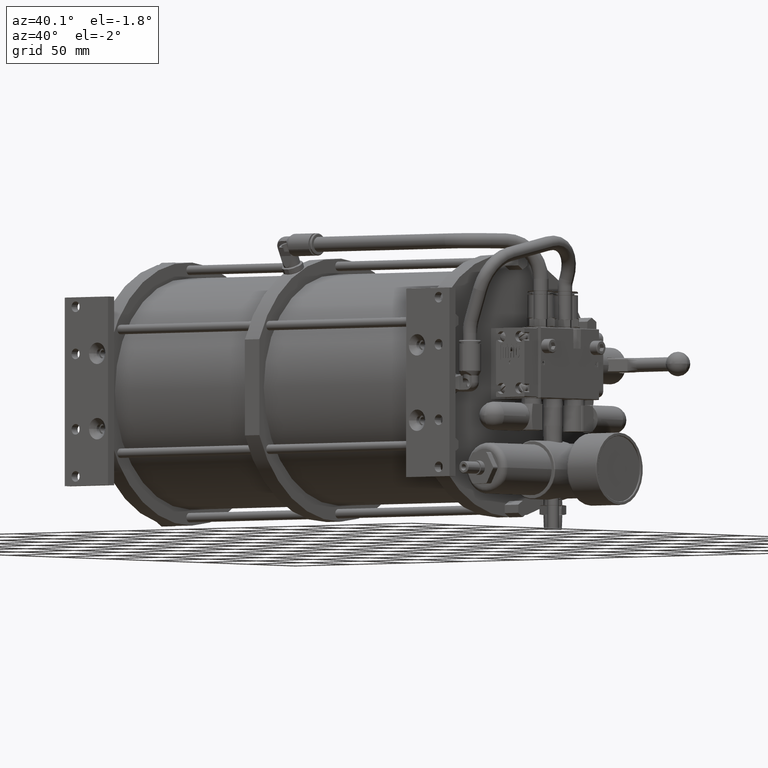
[diagram: clean part render]
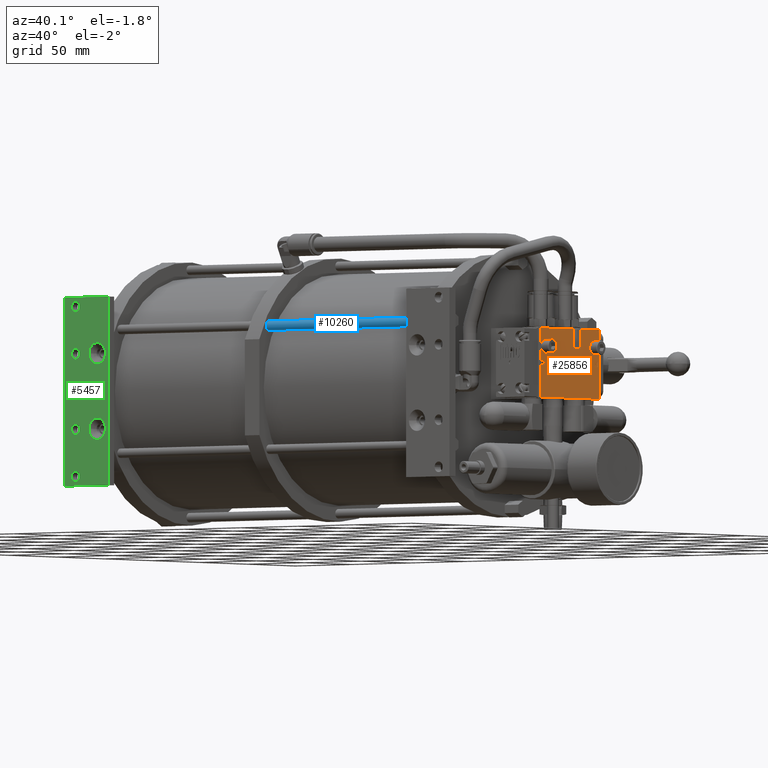
[diagram: same view with three faces highlighted in distinct colors, each labeled with its STEP entity id]
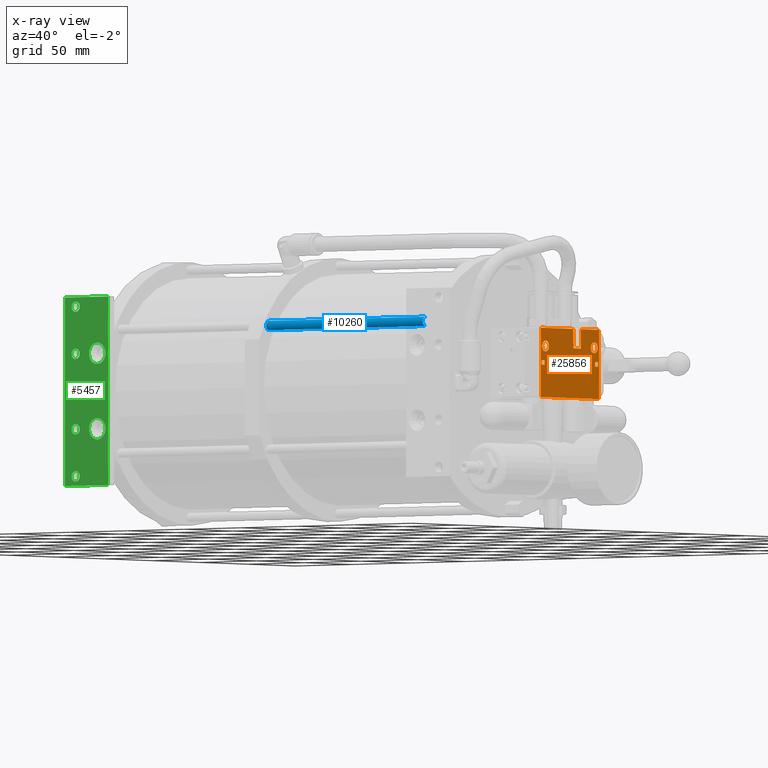
[diagram: x-ray of the same camera — body ghosted, the three highlighted faces saturated]
A machine part, auxiliary view with three faces highlighted in distinct colors.
The next image is the same camera in x-ray (body ghosted, the three faces saturated) — at least one of them is partly hidden behind the body in this view.
Their STEP definitions:

[orange] entity #25856 — the highlighted planar face has unit normal (1, 0, 0).
#17614=DIRECTION('',(0.E0,1.097127964287E-14,1.E0));
#17615=VECTOR('',#17614,4.663000000001E1);
#17616=CARTESIAN_POINT('',(1.932204E2,1.32E2,-7.253000000001E1));
#17617=LINE('',#17616,#17615);
#17650=DIRECTION('',(-1.452586324365E-6,-1.742051257834E-2,9.998482513559E-1));
#17651=VECTOR('',#17650,1.310635197275E1);
#17652=CARTESIAN_POINT('',(1.932204E2,1.0535E2,-3.9E1));
#17653=LINE('',#17652,#17651);
#17654=DIRECTION('',(1.452586322264E-6,-1.742050991343E-2,-9.998482514023E-1));
#17655=VECTOR('',#17654,1.310635197214E1);
#17656=CARTESIAN_POINT('',(1.932203809619E2,1.130783193345E2,
-2.589563689839E1));
#17657=LINE('',#17656,#17655);
#17658=CARTESIAN_POINT('',(1.932204E2,1.30625E2,-3.81E1));
#17659=CARTESIAN_POINT('',(1.932204E2,1.306206400372E2,-3.766192602456E1));
#17660=CARTESIAN_POINT('',(1.932204E2,1.304783948159E2,-3.684266357365E1));
#17661=CARTESIAN_POINT('',(1.932204E2,1.298334496525E2,-3.572016118525E1));
#17662=CARTESIAN_POINT('',(1.932204E2,1.288499314924E2,-3.489684572054E1));
#17663=CARTESIAN_POINT('',(1.932204E2,1.276423860299E2,-3.445672768160E1));
#17664=CARTESIAN_POINT('',(1.932204E2,1.263576431618E2,-3.445672269556E1));
#17665=CARTESIAN_POINT('',(1.932204E2,1.251500941562E2,-3.489683041824E1));
#17666=CARTESIAN_POINT('',(1.932204E2,1.241665694250E2,-3.572014027405E1));
#17667=CARTESIAN_POINT('',(1.932204E2,1.235216152375E2,-3.684262901800E1));
#17668=CARTESIAN_POINT('',(1.932204E2,1.233793634644E2,-3.766191156053E1));
#17669=CARTESIAN_POINT('',(1.932204E2,1.23375E2,-3.81E1));
#17671=CARTESIAN_POINT('',(1.932204E2,1.23375E2,-3.81E1));
#17672=CARTESIAN_POINT('',(1.932204E2,1.233793599629E2,-3.853807397544E1));
#17673=CARTESIAN_POINT('',(1.932204E2,1.235216051841E2,-3.935733642636E1));
#17674=CARTESIAN_POINT('',(1.932204E2,1.241665503474E2,-4.047983881469E1));
#17675=CARTESIAN_POINT('',(1.932204E2,1.251500685075E2,-4.130315427942E1));
#17676=CARTESIAN_POINT('',(1.932204E2,1.263576139700E2,-4.174327231839E1));
#17677=CARTESIAN_POINT('',(1.932204E2,1.276423568381E2,-4.174327730449E1));
#17678=CARTESIAN_POINT('',(1.932204E2,1.288499058437E2,-4.130316958185E1));
#17679=CARTESIAN_POINT('',(1.932204E2,1.298334305750E2,-4.047985972595E1));
#17680=CARTESIAN_POINT('',(1.932204E2,1.304783847624E2,-3.935737098214E1));
#17681=CARTESIAN_POINT('',(1.932204E2,1.306206365356E2,-3.853808843953E1));
#17682=CARTESIAN_POINT('',(1.932204E2,1.30625E2,-3.81E1));
#17684=CARTESIAN_POINT('',(1.932204E2,7.9825E1,-3.81E1));
#17685=CARTESIAN_POINT('',(1.932204E2,7.982064003709E1,-3.766192602441E1));
#17686=CARTESIAN_POINT('',(1.932204E2,7.967839481578E1,-3.684266357328E1));
#17687=CARTESIAN_POINT('',(1.932204E2,7.903344965245E1,-3.572016118519E1));
#17688=CARTESIAN_POINT('',(1.932204E2,7.804993149236E1,-3.489684572049E1));
#17689=CARTESIAN_POINT('',(1.932204E2,7.684238602987E1,-3.445672768160E1));
#17690=CARTESIAN_POINT('',(1.932204E2,7.555764316179E1,-3.445672269557E1));
#17691=CARTESIAN_POINT('',(1.932204E2,7.435009415636E1,-3.489683041816E1));
#17692=CARTESIAN_POINT('',(1.932204E2,7.336656942520E1,-3.572014027386E1));
#17693=CARTESIAN_POINT('',(1.932204E2,7.272161523761E1,-3.684262901775E1));
#17694=CARTESIAN_POINT('',(1.932204E2,7.257936346442E1,-3.766191156042E1));
#17695=CARTESIAN_POINT('',(1.932204E2,7.2575E1,-3.81E1));
#17697=CARTESIAN_POINT('',(1.932204E2,7.2575E1,-3.81E1));
#17698=CARTESIAN_POINT('',(1.932204E2,7.257935996289E1,-3.853807397555E1));
#17699=CARTESIAN_POINT('',(1.932204E2,7.272160518417E1,-3.935733642661E1));
#17700=CARTESIAN_POINT('',(1.932204E2,7.336655034752E1,-4.047983881480E1));
#17701=CARTESIAN_POINT('',(1.932204E2,7.435006850760E1,-4.130315427950E1));
#17702=CARTESIAN_POINT('',(1.932204E2,7.555761397001E1,-4.174327231839E1));
#17703=CARTESIAN_POINT('',(1.932204E2,7.684235683804E1,-4.174327730449E1));
#17704=CARTESIAN_POINT('',(1.932204E2,7.804990584363E1,-4.130316958188E1));
#17705=CARTESIAN_POINT('',(1.932204E2,7.903343057489E1,-4.047985972603E1));
#17706=CARTESIAN_POINT('',(1.932204E2,7.967838476230E1,-3.935737098248E1));
#17707=CARTESIAN_POINT('',(1.932204E2,7.982063653554E1,-3.853808843968E1));
#17708=CARTESIAN_POINT('',(1.932204E2,7.9825E1,-3.81E1));
#17710=DIRECTION('',(0.E0,-1.E0,0.E0));
#17711=VECTOR('',#17710,3.000000000003E0);
#17712=CARTESIAN_POINT('',(1.932204E2,7.52E1,-5.07E1));
#17713=LINE('',#17712,#17711);
#17714=DIRECTION('',(0.E0,0.E0,-1.E0));
#17715=VECTOR('',#17714,2.999999999999E0);
#17716=CARTESIAN_POINT('',(1.932204E2,7.52E1,-4.77E1));
#17717=LINE('',#17716,#17715);
#17718=DIRECTION('',(0.E0,0.E0,1.E0));
#17719=VECTOR('',#17718,2.999999999999E0);
#17720=CARTESIAN_POINT('',(1.932204E2,7.22E1,-5.07E1));
#17721=LINE('',#17720,#17719);
#17749=DIRECTION('',(0.E0,2.072352821432E-14,-1.E0));
#17750=VECTOR('',#17749,4.663000000001E1);
#17751=CARTESIAN_POINT('',(1.932204E2,7.119999999999E1,-2.59E1));
#17752=LINE('',#17751,#17750);
#17812=DIRECTION('',(-1.006152855847E-6,-9.999999734142E-1,2.305874183154E-4));
#17813=VECTOR('',#17812,1.892168116859E1);
#17814=CARTESIAN_POINT('',(1.932204E2,1.32E2,-2.59E1));
#17815=LINE('',#17814,#17813);
#17826=CARTESIAN_POINT('',(1.932203809619E2,1.130783193345E2,
-2.589563689839E1));
#17840=DIRECTION('',(0.E0,1.E0,0.E0));
#17841=VECTOR('',#17840,7.499999999997E0);
#17842=CARTESIAN_POINT('',(1.932204E2,1.0535E2,-3.9E1));
#17843=LINE('',#17842,#17841);
#17902=DIRECTION('',(5.612370337263E-7,-9.999999917279E-1,-1.286228009241E-4));
#17903=VECTOR('',#17902,3.392168091122E1);
#17904=CARTESIAN_POINT('',(1.932203809619E2,1.051216806306E2,
-2.589563689839E1));
#17905=LINE('',#17904,#17903);
#19838=DIRECTION('',(0.E0,1.E0,0.E0));
#19839=VECTOR('',#19838,6.080000000001E1);
#19840=CARTESIAN_POINT('',(1.932204E2,7.12E1,-7.253000000001E1));
#19841=LINE('',#19840,#19839);
#19846=DIRECTION('',(0.E0,0.E0,-1.E0));
#19847=VECTOR('',#19846,2.999999999999E0);
#19848=CARTESIAN_POINT('',(1.932204E2,1.31E2,-4.77E1));
#19849=LINE('',#19848,#19847);
#19858=DIRECTION('',(0.E0,-1.E0,0.E0));
#19859=VECTOR('',#19858,2.999999999999E0);
#19860=CARTESIAN_POINT('',(1.932204E2,1.31E2,-5.07E1));
#19861=LINE('',#19860,#19859);
#19866=DIRECTION('',(0.E0,0.E0,1.E0));
#19867=VECTOR('',#19866,2.999999999999E0);
#19868=CARTESIAN_POINT('',(1.932204E2,1.28E2,-5.07E1));
#19869=LINE('',#19868,#19867);
#19878=DIRECTION('',(0.E0,1.E0,0.E0));
#19879=VECTOR('',#19878,2.999999999999E0);
#19880=CARTESIAN_POINT('',(1.932204E2,1.28E2,-4.77E1));
#19881=LINE('',#19880,#19879);
#19926=DIRECTION('',(0.E0,1.E0,0.E0));
#19927=VECTOR('',#19926,3.000000000003E0);
#19928=CARTESIAN_POINT('',(1.932204E2,7.22E1,-4.77E1));
#19929=LINE('',#19928,#19927);
#23196=VERTEX_POINT('',#17669);
#23197=VERTEX_POINT('',#17658);
#23198=VERTEX_POINT('',#17695);
#23199=VERTEX_POINT('',#17684);
#23678=VERTEX_POINT('',#17826);
#23683=CARTESIAN_POINT('',(1.932204E2,1.32E2,-2.59E1));
#23685=VERTEX_POINT('',#23683);
#23702=CARTESIAN_POINT('',(1.932203809619E2,1.051216806306E2,
-2.589563689839E1));
#23703=VERTEX_POINT('',#23702);
#23709=CARTESIAN_POINT('',(1.932204E2,7.119999999999E1,-2.59E1));
#23710=VERTEX_POINT('',#23709);
#23717=CARTESIAN_POINT('',(1.932204E2,7.52E1,-5.07E1));
#23718=CARTESIAN_POINT('',(1.932204E2,7.22E1,-5.07E1));
#23719=VERTEX_POINT('',#23717);
#23720=VERTEX_POINT('',#23718);
#23725=CARTESIAN_POINT('',(1.932204E2,7.22E1,-4.77E1));
#23726=VERTEX_POINT('',#23725);
#23729=CARTESIAN_POINT('',(1.932204E2,7.12E1,-7.253000000001E1));
#23731=VERTEX_POINT('',#23729);
#23733=CARTESIAN_POINT('',(1.932204E2,1.32E2,-7.253000000001E1));
#23734=VERTEX_POINT('',#23733);
#23741=CARTESIAN_POINT('',(1.932204E2,7.52E1,-4.77E1));
#23742=VERTEX_POINT('',#23741);
#23825=CARTESIAN_POINT('',(1.932204E2,1.0535E2,-3.9E1));
#23826=VERTEX_POINT('',#23825);
#23827=CARTESIAN_POINT('',(1.932204E2,1.1285E2,-3.9E1));
#23828=VERTEX_POINT('',#23827);
#23829=CARTESIAN_POINT('',(1.932204E2,1.31E2,-4.77E1));
#23830=CARTESIAN_POINT('',(1.932204E2,1.31E2,-5.07E1));
#23831=VERTEX_POINT('',#23829);
#23832=VERTEX_POINT('',#23830);
#23833=CARTESIAN_POINT('',(1.932204E2,1.28E2,-4.77E1));
#23834=VERTEX_POINT('',#23833);
#23835=CARTESIAN_POINT('',(1.932204E2,1.28E2,-5.07E1));
#23836=VERTEX_POINT('',#23835);
#25802=CARTESIAN_POINT('',(1.932204E2,1.016E2,-4.9215E1));
#25803=DIRECTION('',(1.E0,0.E0,0.E0));
#25804=DIRECTION('',(0.E0,1.E0,0.E0));
#25805=AXIS2_PLACEMENT_3D('',#25802,#25803,#25804);
#25806=PLANE('',#25805);
#25808=ORIENTED_EDGE('',*,*,#25807,.F.);
#25810=ORIENTED_EDGE('',*,*,#25809,.F.);
#25812=ORIENTED_EDGE('',*,*,#25811,.F.);
#25814=ORIENTED_EDGE('',*,*,#25813,.T.);
#25816=ORIENTED_EDGE('',*,*,#25815,.F.);
#25818=ORIENTED_EDGE('',*,*,#25817,.F.);
#25819=ORIENTED_EDGE('',*,*,#25785,.F.);
#25821=ORIENTED_EDGE('',*,*,#25820,.F.);
#25822=EDGE_LOOP('',(#25808,#25810,#25812,#25814,#25816,#25818,#25819,#25821));
#25823=FACE_OUTER_BOUND('',#25822,.F.);
#25825=ORIENTED_EDGE('',*,*,#25824,.T.);
#25827=ORIENTED_EDGE('',*,*,#25826,.T.);
#25828=EDGE_LOOP('',(#25825,#25827));
#25829=FACE_BOUND('',#25828,.F.);
#25831=ORIENTED_EDGE('',*,*,#25830,.T.);
#25833=ORIENTED_EDGE('',*,*,#25832,.T.);
#25834=EDGE_LOOP('',(#25831,#25833));
#25835=FACE_BOUND('',#25834,.F.);
#25837=ORIENTED_EDGE('',*,*,#25836,.F.);
#25839=ORIENTED_EDGE('',*,*,#25838,.F.);
#25841=ORIENTED_EDGE('',*,*,#25840,.F.);
#25843=ORIENTED_EDGE('',*,*,#25842,.F.);
#25844=EDGE_LOOP('',(#25837,#25839,#25841,#25843));
#25845=FACE_BOUND('',#25844,.F.);
#25847=ORIENTED_EDGE('',*,*,#25846,.F.);
#25849=ORIENTED_EDGE('',*,*,#25848,.F.);
#25851=ORIENTED_EDGE('',*,*,#25850,.F.);
#25853=ORIENTED_EDGE('',*,*,#25852,.F.);
#25854=EDGE_LOOP('',(#25847,#25849,#25851,#25853));
#25855=FACE_BOUND('',#25854,.F.);
#25856=ADVANCED_FACE('',(#25823,#25829,#25835,#25845,#25855),#25806,.T.);
#17670=B_SPLINE_CURVE_WITH_KNOTS('',3,(#17658,#17659,#17660,#17661,#17662,
#17663,#17664,#17665,#17666,#17667,#17668,#17669),.UNSPECIFIED.,.F.,.F.,(4,1,1,
1,1,1,1,1,1,4),(0.E0,1.111111111111E-1,2.222222222222E-1,3.333333333333E-1,
4.444444444444E-1,5.555555555556E-1,6.666666666667E-1,7.777777777778E-1,
8.888888888889E-1,1.E0),.UNSPECIFIED.);
#17683=B_SPLINE_CURVE_WITH_KNOTS('',3,(#17671,#17672,#17673,#17674,#17675,
#17676,#17677,#17678,#17679,#17680,#17681,#17682),.UNSPECIFIED.,.F.,.F.,(4,1,1,
1,1,1,1,1,1,4),(0.E0,1.111111111111E-1,2.222222222222E-1,3.333333333333E-1,
4.444444444444E-1,5.555555555556E-1,6.666666666667E-1,7.777777777778E-1,
8.888888888889E-1,1.E0),.UNSPECIFIED.);
#17696=B_SPLINE_CURVE_WITH_KNOTS('',3,(#17684,#17685,#17686,#17687,#17688,
#17689,#17690,#17691,#17692,#17693,#17694,#17695),.UNSPECIFIED.,.F.,.F.,(4,1,1,
1,1,1,1,1,1,4),(0.E0,1.111111111111E-1,2.222222222222E-1,3.333333333333E-1,
4.444444444444E-1,5.555555555556E-1,6.666666666667E-1,7.777777777778E-1,
8.888888888889E-1,1.E0),.UNSPECIFIED.);
#17709=B_SPLINE_CURVE_WITH_KNOTS('',3,(#17697,#17698,#17699,#17700,#17701,
#17702,#17703,#17704,#17705,#17706,#17707,#17708),.UNSPECIFIED.,.F.,.F.,(4,1,1,
1,1,1,1,1,1,4),(0.E0,1.111111111111E-1,2.222222222222E-1,3.333333333333E-1,
4.444444444444E-1,5.555555555556E-1,6.666666666667E-1,7.777777777778E-1,
8.888888888889E-1,1.E0),.UNSPECIFIED.);
#25785=EDGE_CURVE('',#23734,#23685,#17617,.T.);
#25807=EDGE_CURVE('',#23710,#23731,#17752,.T.);
#25809=EDGE_CURVE('',#23703,#23710,#17905,.T.);
#25811=EDGE_CURVE('',#23826,#23703,#17653,.T.);
#25813=EDGE_CURVE('',#23826,#23828,#17843,.T.);
#25815=EDGE_CURVE('',#23678,#23828,#17657,.T.);
#25817=EDGE_CURVE('',#23685,#23678,#17815,.T.);
#25820=EDGE_CURVE('',#23731,#23734,#19841,.T.);
#25824=EDGE_CURVE('',#23197,#23196,#17670,.T.);
#25826=EDGE_CURVE('',#23196,#23197,#17683,.T.);
#25830=EDGE_CURVE('',#23199,#23198,#17696,.T.);
#25832=EDGE_CURVE('',#23198,#23199,#17709,.T.);
#25836=EDGE_CURVE('',#23831,#23832,#19849,.T.);
#25838=EDGE_CURVE('',#23834,#23831,#19881,.T.);
#25840=EDGE_CURVE('',#23836,#23834,#19869,.T.);
#25842=EDGE_CURVE('',#23832,#23836,#19861,.T.);
#25846=EDGE_CURVE('',#23719,#23720,#17713,.T.);
#25848=EDGE_CURVE('',#23742,#23719,#17717,.T.);
#25850=EDGE_CURVE('',#23726,#23742,#19929,.T.);
#25852=EDGE_CURVE('',#23720,#23726,#17721,.T.);

[blue] entity #10260 — the highlighted cylindrical surface (edge-blend (fillet) strip) has radius 3.175 mm, axis along (-1, 0, 0).
#792=CARTESIAN_POINT('',(-7.418066161335E-12,1.671669599203E1,-2.182495E1));
#793=DIRECTION('',(-1.E0,0.E0,0.E0));
#794=DIRECTION('',(0.E0,0.E0,-1.E0));
#795=AXIS2_PLACEMENT_3D('',#792,#793,#794);
#1813=CARTESIAN_POINT('',(1.378204E2,1.671669599203E1,-2.182495E1));
#1814=DIRECTION('',(-1.E0,0.E0,0.E0));
#1815=DIRECTION('',(0.E0,0.E0,-1.E0));
#1816=AXIS2_PLACEMENT_3D('',#1813,#1814,#1815);
#3767=DIRECTION('',(1.E0,0.E0,0.E0));
#3768=VECTOR('',#3767,1.378204E2);
#3769=CARTESIAN_POINT('',(-4.945377440890E-12,1.671669599203E1,-1.864995E1));
#3770=LINE('',#3769,#3768);
#3771=DIRECTION('',(-1.E0,0.E0,0.E0));
#3772=VECTOR('',#3771,1.378204E2);
#3773=CARTESIAN_POINT('',(1.378204E2,1.671669599203E1,-2.499995E1));
#3774=LINE('',#3773,#3772);
#4739=CARTESIAN_POINT('',(1.378204E2,1.671669599203E1,-1.864995E1));
#4740=CARTESIAN_POINT('',(1.378204E2,1.671669599203E1,-2.499995E1));
#4741=VERTEX_POINT('',#4739);
#4742=VERTEX_POINT('',#4740);
#4969=CARTESIAN_POINT('',(-7.418066161335E-12,1.671669599203E1,-1.864995E1));
#4970=CARTESIAN_POINT('',(-7.418066161335E-12,1.671669599203E1,-2.499995E1));
#4971=VERTEX_POINT('',#4969);
#4972=VERTEX_POINT('',#4970);
#10249=CARTESIAN_POINT('',(1.4319758E2,1.671669599203E1,-2.182495E1));
#10250=DIRECTION('',(-1.E0,0.E0,0.E0));
#10251=DIRECTION('',(0.E0,0.E0,1.E0));
#10252=AXIS2_PLACEMENT_3D('',#10249,#10250,#10251);
#10253=CYLINDRICAL_SURFACE('',#10252,3.175E0);
#10254=ORIENTED_EDGE('',*,*,#6386,.T.);
#10255=ORIENTED_EDGE('',*,*,#10244,.T.);
#10256=ORIENTED_EDGE('',*,*,#7604,.F.);
#10257=ORIENTED_EDGE('',*,*,#10241,.T.);
#10258=EDGE_LOOP('',(#10254,#10255,#10256,#10257));
#10259=FACE_OUTER_BOUND('',#10258,.F.);
#10260=ADVANCED_FACE('',(#10259),#10253,.T.);
#796=CIRCLE('',#795,3.175E0);
#1817=CIRCLE('',#1816,3.175E0);
#6386=EDGE_CURVE('',#4972,#4971,#796,.T.);
#7604=EDGE_CURVE('',#4742,#4741,#1817,.T.);
#10241=EDGE_CURVE('',#4742,#4972,#3774,.T.);
#10244=EDGE_CURVE('',#4971,#4741,#3770,.T.);

[green] entity #5457 — the highlighted planar face has unit normal (0, 1, 0).
#1=CARTESIAN_POINT('',(-1.564513E2,1.709743457923E-14,-6.35E0));
#2=DIRECTION('',(0.E0,-1.E0,0.E0));
#3=DIRECTION('',(-1.E0,0.E0,0.E0));
#4=AXIS2_PLACEMENT_3D('',#1,#2,#3);
#6=CARTESIAN_POINT('',(-1.564513E2,1.709743457923E-14,-6.35E0));
#7=DIRECTION('',(0.E0,-1.E0,0.E0));
#8=DIRECTION('',(1.E0,0.E0,0.E0));
#9=AXIS2_PLACEMENT_3D('',#6,#7,#8);
#11=CARTESIAN_POINT('',(-1.564513E2,1.709743457923E-14,-3.81E1));
#12=DIRECTION('',(0.E0,-1.E0,0.E0));
#13=DIRECTION('',(-1.E0,0.E0,0.E0));
#14=AXIS2_PLACEMENT_3D('',#11,#12,#13);
#16=CARTESIAN_POINT('',(-1.564513E2,1.709743457923E-14,-3.81E1));
#17=DIRECTION('',(0.E0,-1.E0,0.E0));
#18=DIRECTION('',(1.E0,0.E0,0.E0));
#19=AXIS2_PLACEMENT_3D('',#16,#17,#18);
#21=CARTESIAN_POINT('',(-1.564513E2,1.709743457923E-14,-8.89E1));
#22=DIRECTION('',(0.E0,-1.E0,0.E0));
#23=DIRECTION('',(-1.E0,0.E0,0.E0));
#24=AXIS2_PLACEMENT_3D('',#21,#22,#23);
#26=CARTESIAN_POINT('',(-1.564513E2,1.709743457923E-14,-8.89E1));
#27=DIRECTION('',(0.E0,-1.E0,0.E0));
#28=DIRECTION('',(1.E0,0.E0,0.E0));
#29=AXIS2_PLACEMENT_3D('',#26,#27,#28);
#31=CARTESIAN_POINT('',(-1.564513E2,1.709743457923E-14,-1.2065E2));
#32=DIRECTION('',(0.E0,-1.E0,0.E0));
#33=DIRECTION('',(-1.E0,0.E0,1.194624489187E-14));
#34=AXIS2_PLACEMENT_3D('',#31,#32,#33);
#36=CARTESIAN_POINT('',(-1.564513E2,1.709743457923E-14,-1.2065E2));
#37=DIRECTION('',(0.E0,-1.E0,0.E0));
#38=DIRECTION('',(1.E0,0.E0,1.194624489187E-14));
#39=AXIS2_PLACEMENT_3D('',#36,#37,#38);
#41=CARTESIAN_POINT('',(-1.374013E2,-1.474376176702E-13,-3.81E1));
#42=DIRECTION('',(0.E0,-1.E0,0.E0));
#43=DIRECTION('',(-1.E0,0.E0,0.E0));
#44=AXIS2_PLACEMENT_3D('',#41,#42,#43);
#46=CARTESIAN_POINT('',(-1.374013E2,-1.474376176702E-13,-3.81E1));
#47=DIRECTION('',(0.E0,-1.E0,0.E0));
#48=DIRECTION('',(1.E0,0.E0,0.E0));
#49=AXIS2_PLACEMENT_3D('',#46,#47,#48);
#51=CARTESIAN_POINT('',(-1.374013E2,-1.474376176702E-13,-8.89E1));
#52=DIRECTION('',(0.E0,-1.E0,0.E0));
#53=DIRECTION('',(-1.E0,0.E0,0.E0));
#54=AXIS2_PLACEMENT_3D('',#51,#52,#53);
#56=CARTESIAN_POINT('',(-1.374013E2,-1.474376176702E-13,-8.89E1));
#57=DIRECTION('',(0.E0,-1.E0,0.E0));
#58=DIRECTION('',(1.E0,0.E0,0.E0));
#59=AXIS2_PLACEMENT_3D('',#56,#57,#58);
#61=DIRECTION('',(0.E0,0.E0,-1.E0));
#62=VECTOR('',#61,1.27E2);
#63=CARTESIAN_POINT('',(-1.278763E2,0.E0,0.E0));
#64=LINE('',#63,#62);
#69=DIRECTION('',(1.E0,0.E0,0.E0));
#70=VECTOR('',#69,3.81E1);
#71=CARTESIAN_POINT('',(-1.659763E2,0.E0,0.E0));
#72=LINE('',#71,#70);
#81=DIRECTION('',(0.E0,0.E0,1.E0));
#82=VECTOR('',#81,1.27E2);
#83=CARTESIAN_POINT('',(-1.659763E2,0.E0,-1.27E2));
#84=LINE('',#83,#82);
#93=DIRECTION('',(-1.E0,0.E0,0.E0));
#94=VECTOR('',#93,3.81E1);
#95=CARTESIAN_POINT('',(-1.278763E2,0.E0,-1.27E2));
#96=LINE('',#95,#94);
#4607=CARTESIAN_POINT('',(-1.6002E2,1.709743457923E-14,-6.35E0));
#4608=CARTESIAN_POINT('',(-1.528826E2,1.709743457923E-14,-6.35E0));
#4609=VERTEX_POINT('',#4607);
#4610=VERTEX_POINT('',#4608);
#4615=CARTESIAN_POINT('',(-1.278763E2,0.E0,0.E0));
#4616=CARTESIAN_POINT('',(-1.278763E2,0.E0,-1.27E2));
#4617=VERTEX_POINT('',#4615);
#4618=VERTEX_POINT('',#4616);
#4619=CARTESIAN_POINT('',(-1.659763E2,0.E0,0.E0));
#4620=VERTEX_POINT('',#4619);
#4621=CARTESIAN_POINT('',(-1.659763E2,0.E0,-1.27E2));
#4622=VERTEX_POINT('',#4621);
#4623=CARTESIAN_POINT('',(-1.6002E2,1.709743457923E-14,-3.81E1));
#4624=CARTESIAN_POINT('',(-1.528826E2,1.709743457923E-14,-3.81E1));
#4625=VERTEX_POINT('',#4623);
#4626=VERTEX_POINT('',#4624);
#4627=CARTESIAN_POINT('',(-1.6002E2,1.709743457923E-14,-8.89E1));
#4628=CARTESIAN_POINT('',(-1.528826E2,1.709743457923E-14,-8.89E1));
#4629=VERTEX_POINT('',#4627);
#4630=VERTEX_POINT('',#4628);
#4631=CARTESIAN_POINT('',(-1.6002E2,1.709743457923E-14,-1.2065E2));
#4632=CARTESIAN_POINT('',(-1.528826E2,1.709743457923E-14,-1.2065E2));
#4633=VERTEX_POINT('',#4631);
#4634=VERTEX_POINT('',#4632);
#4635=CARTESIAN_POINT('',(-1.446403E2,-1.474376176702E-13,-3.81E1));
#4636=CARTESIAN_POINT('',(-1.301623E2,-1.474376176702E-13,-3.81E1));
#4637=VERTEX_POINT('',#4635);
#4638=VERTEX_POINT('',#4636);
#4639=CARTESIAN_POINT('',(-1.446403E2,-1.474376176702E-13,-8.89E1));
#4640=CARTESIAN_POINT('',(-1.301623E2,-1.474376176702E-13,-8.89E1));
#4641=VERTEX_POINT('',#4639);
#4642=VERTEX_POINT('',#4640);
#5407=CARTESIAN_POINT('',(-1.469263E2,0.E0,-6.35E1));
#5408=DIRECTION('',(0.E0,1.E0,0.E0));
#5409=DIRECTION('',(-1.E0,0.E0,0.E0));
#5410=AXIS2_PLACEMENT_3D('',#5407,#5408,#5409);
#5411=PLANE('',#5410);
#5413=ORIENTED_EDGE('',*,*,#5412,.T.);
#5415=ORIENTED_EDGE('',*,*,#5414,.T.);
#5417=ORIENTED_EDGE('',*,*,#5416,.T.);
#5419=ORIENTED_EDGE('',*,*,#5418,.T.);
#5420=EDGE_LOOP('',(#5413,#5415,#5417,#5419));
#5421=FACE_OUTER_BOUND('',#5420,.F.);
#5422=ORIENTED_EDGE('',*,*,#5396,.T.);
#5424=ORIENTED_EDGE('',*,*,#5423,.T.);
#5425=EDGE_LOOP('',(#5422,#5424));
#5426=FACE_BOUND('',#5425,.F.);
#5428=ORIENTED_EDGE('',*,*,#5427,.T.);
#5430=ORIENTED_EDGE('',*,*,#5429,.T.);
#5431=EDGE_LOOP('',(#5428,#5430));
#5432=FACE_BOUND('',#5431,.F.);
#5434=ORIENTED_EDGE('',*,*,#5433,.T.);
#5436=ORIENTED_EDGE('',*,*,#5435,.T.);
#5437=EDGE_LOOP('',(#5434,#5436));
#5438=FACE_BOUND('',#5437,.F.);
#5440=ORIENTED_EDGE('',*,*,#5439,.T.);
#5442=ORIENTED_EDGE('',*,*,#5441,.T.);
#5443=EDGE_LOOP('',(#5440,#5442));
#5444=FACE_BOUND('',#5443,.F.);
#5446=ORIENTED_EDGE('',*,*,#5445,.T.);
#5448=ORIENTED_EDGE('',*,*,#5447,.T.);
#5449=EDGE_LOOP('',(#5446,#5448));
#5450=FACE_BOUND('',#5449,.F.);
#5452=ORIENTED_EDGE('',*,*,#5451,.T.);
#5454=ORIENTED_EDGE('',*,*,#5453,.T.);
#5455=EDGE_LOOP('',(#5452,#5454));
#5456=FACE_BOUND('',#5455,.F.);
#5457=ADVANCED_FACE('',(#5421,#5426,#5432,#5438,#5444,#5450,#5456),#5411,.F.);
#5=CIRCLE('',#4,3.5687E0);
#10=CIRCLE('',#9,3.5687E0);
#15=CIRCLE('',#14,3.5687E0);
#20=CIRCLE('',#19,3.5687E0);
#25=CIRCLE('',#24,3.5687E0);
#30=CIRCLE('',#29,3.5687E0);
#35=CIRCLE('',#34,3.5687E0);
#40=CIRCLE('',#39,3.5687E0);
#45=CIRCLE('',#44,7.239E0);
#50=CIRCLE('',#49,7.239E0);
#55=CIRCLE('',#54,7.239E0);
#60=CIRCLE('',#59,7.239E0);
#5396=EDGE_CURVE('',#4609,#4610,#5,.T.);
#5412=EDGE_CURVE('',#4617,#4618,#64,.T.);
#5414=EDGE_CURVE('',#4618,#4622,#96,.T.);
#5416=EDGE_CURVE('',#4622,#4620,#84,.T.);
#5418=EDGE_CURVE('',#4620,#4617,#72,.T.);
#5423=EDGE_CURVE('',#4610,#4609,#10,.T.);
#5427=EDGE_CURVE('',#4625,#4626,#15,.T.);
#5429=EDGE_CURVE('',#4626,#4625,#20,.T.);
#5433=EDGE_CURVE('',#4629,#4630,#25,.T.);
#5435=EDGE_CURVE('',#4630,#4629,#30,.T.);
#5439=EDGE_CURVE('',#4633,#4634,#35,.T.);
#5441=EDGE_CURVE('',#4634,#4633,#40,.T.);
#5445=EDGE_CURVE('',#4637,#4638,#45,.T.);
#5447=EDGE_CURVE('',#4638,#4637,#50,.T.);
#5451=EDGE_CURVE('',#4641,#4642,#55,.T.);
#5453=EDGE_CURVE('',#4642,#4641,#60,.T.);